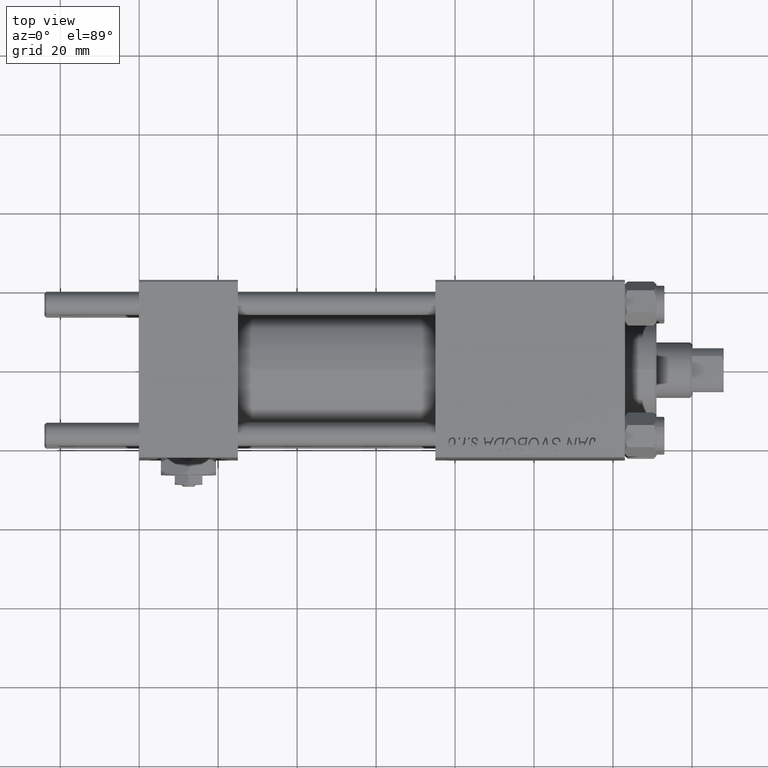
[diagram: clean part render]
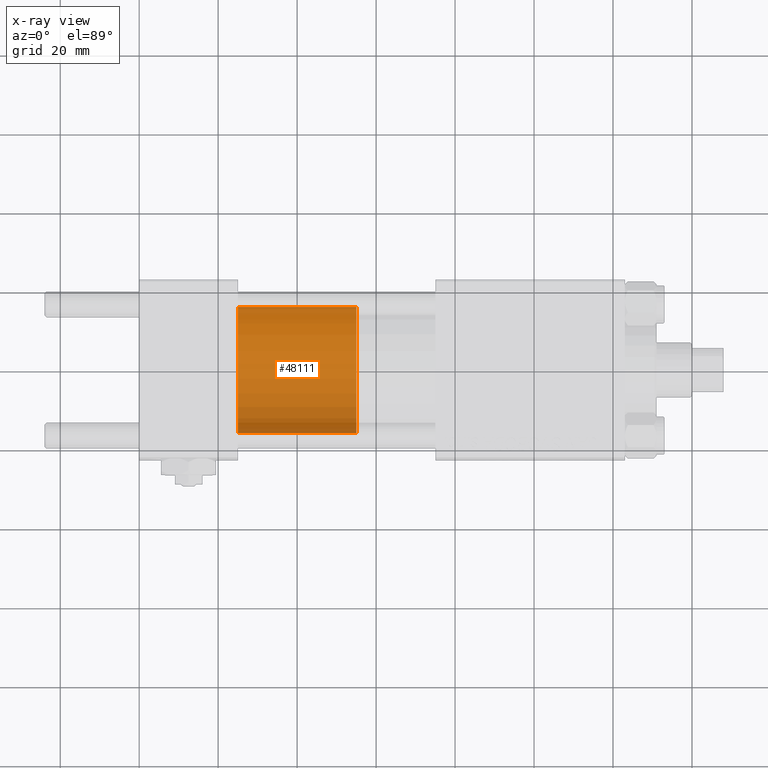
[diagram: x-ray — body ghosted, one internal face saturated and labeled with its STEP entity id]
A machine part, top view, then the same camera in x-ray: the body is ghosted and one INTERNAL B-rep face — a face not visible from any outside direction — is saturated and labeled: STEP entity #48111.
In plain terms, the highlighted cylindrical surface (partial cylindrical patch) has radius 16 mm, axis along (-1, 0, 0).
Its self-contained STEP definition (entity closure, byte-faithful):
#644 = CARTESIAN_POINT ( 'NONE',  ( -16.00000000000000000, 0.000000000000000000, 30.00000000000000000 ) ) ;
#1328 = CARTESIAN_POINT ( 'NONE',  ( -16.00000000000000000, 0.000000000000000000, 0.000000000000000000 ) ) ;
#2734 = EDGE_CURVE ( 'NONE', #18008, #3670, #25118, .T. ) ;
#3202 = VECTOR ( 'NONE', #32950, 1000.000000000000000 ) ;
#3670 = VERTEX_POINT ( 'NONE', #1328 ) ;
#3703 = DIRECTION ( 'NONE',  ( 0.000000000000000000, 0.000000000000000000, 1.000000000000000000 ) ) ;
#4435 = EDGE_LOOP ( 'NONE', ( #44579, #19758, #7719, #41591 ) ) ;
#5572 = CYLINDRICAL_SURFACE ( 'NONE', #13418, 16.00000000000000000 ) ;
#7719 = ORIENTED_EDGE ( 'NONE', *, *, #9394, .T. ) ;
#8722 = CARTESIAN_POINT ( 'NONE',  ( 0.000000000000000000, 0.000000000000000000, 30.00000000000000000 ) ) ;
#9285 = CIRCLE ( 'NONE', #38500, 16.00000000000000000 ) ;
#9394 = EDGE_CURVE ( 'NONE', #45454, #3670, #27875, .T. ) ;
#9946 = DIRECTION ( 'NONE',  ( -0.000000000000000000, -0.000000000000000000, -1.000000000000000000 ) ) ;
#13418 = AXIS2_PLACEMENT_3D ( 'NONE', #8722, #37471, #21787 ) ;
#15117 = CARTESIAN_POINT ( 'NONE',  ( 16.00000000000000000, 1.959434878635765131E-15, 30.00000000000000000 ) ) ;
#18008 = VERTEX_POINT ( 'NONE', #644 ) ;
#19758 = ORIENTED_EDGE ( 'NONE', *, *, #38058, .T. ) ;
#20215 = VERTEX_POINT ( 'NONE', #15117 ) ;
#21787 = DIRECTION ( 'NONE',  ( -1.000000000000000000, 0.000000000000000000, 0.000000000000000000 ) ) ;
#25118 = LINE ( 'NONE', #32698, #3202 ) ;
#27875 = CIRCLE ( 'NONE', #48730, 16.00000000000000000 ) ;
#28994 = VECTOR ( 'NONE', #9946, 1000.000000000000000 ) ;
#30823 = CARTESIAN_POINT ( 'NONE',  ( 16.00000000000000000, 1.959434878635765131E-15, 30.00000000000000000 ) ) ;
#31914 = DIRECTION ( 'NONE',  ( 0.000000000000000000, 0.000000000000000000, 1.000000000000000000 ) ) ;
#31922 = DIRECTION ( 'NONE',  ( 1.000000000000000000, 0.000000000000000000, 0.000000000000000000 ) ) ;
#32698 = CARTESIAN_POINT ( 'NONE',  ( -16.00000000000000000, 0.000000000000000000, 30.00000000000000000 ) ) ;
#32950 = DIRECTION ( 'NONE',  ( -0.000000000000000000, -0.000000000000000000, -1.000000000000000000 ) ) ;
#34429 = EDGE_CURVE ( 'NONE', #20215, #18008, #9285, .T. ) ;
#35331 = CARTESIAN_POINT ( 'NONE',  ( 0.000000000000000000, 0.000000000000000000, 0.000000000000000000 ) ) ;
#36106 = DIRECTION ( 'NONE',  ( 1.000000000000000000, 0.000000000000000000, 0.000000000000000000 ) ) ;
#37471 = DIRECTION ( 'NONE',  ( -0.000000000000000000, -0.000000000000000000, -1.000000000000000000 ) ) ;
#38058 = EDGE_CURVE ( 'NONE', #20215, #45454, #49918, .T. ) ;
#38500 = AXIS2_PLACEMENT_3D ( 'NONE', #40020, #31914, #36106 ) ;
#40020 = CARTESIAN_POINT ( 'NONE',  ( 0.000000000000000000, 0.000000000000000000, 30.00000000000000000 ) ) ;
#41591 = ORIENTED_EDGE ( 'NONE', *, *, #2734, .F. ) ;
#41660 = FACE_OUTER_BOUND ( 'NONE', #4435, .T. ) ;
#44579 = ORIENTED_EDGE ( 'NONE', *, *, #34429, .F. ) ;
#45454 = VERTEX_POINT ( 'NONE', #49505 ) ;
#48111 = ADVANCED_FACE ( 'NONE', ( #41660 ), #5572, .T. ) ;
#48730 = AXIS2_PLACEMENT_3D ( 'NONE', #35331, #3703, #31922 ) ;
#49505 = CARTESIAN_POINT ( 'NONE',  ( 16.00000000000000000, 1.959434878635765131E-15, 0.000000000000000000 ) ) ;
#49918 = LINE ( 'NONE', #30823, #28994 ) ;